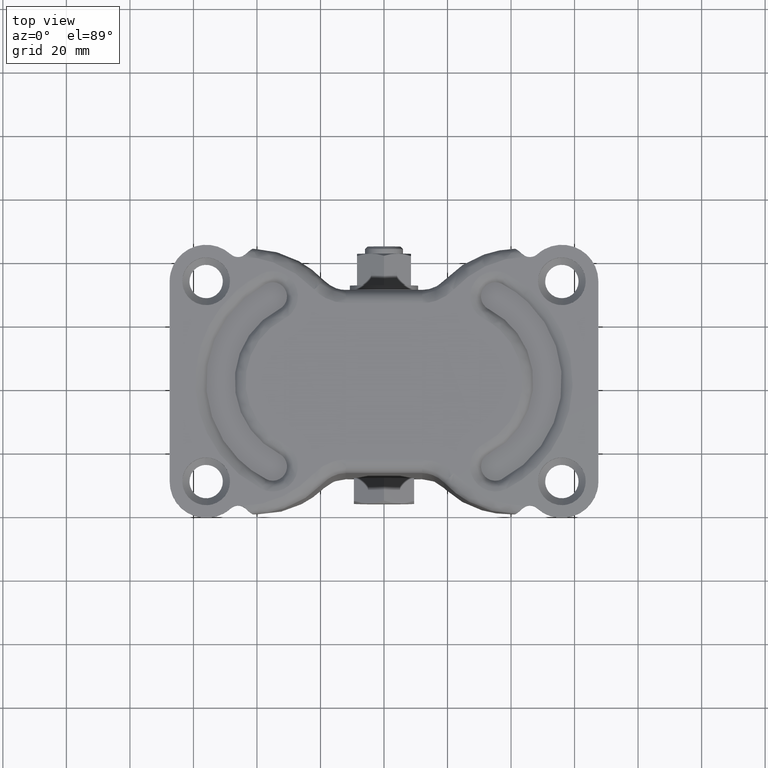
[diagram: clean part render]
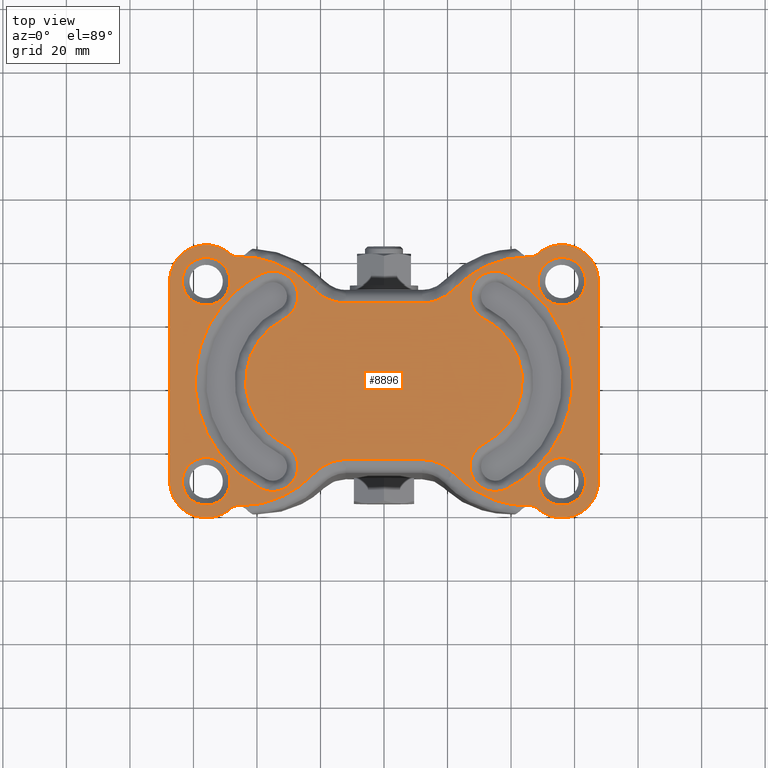
[diagram: same view with one face highlighted and labeled with its STEP entity id]
A machine part, top view. The second image highlights one B-rep face of the part: STEP entity #8896.
In plain terms, the highlighted face is a freeform B-spline surface patch.
Its self-contained STEP definition (entity closure, byte-faithful):
#4541=CARTESIAN_POINT('',(-56.457864046889497,38.986010988140883,-5.204170E-017));
#4542=VERTEX_POINT('',#4541);
#4543=CARTESIAN_POINT('',(-48.500000000000000,31.500000000000000,0.0));
#4544=VERTEX_POINT('',#4543);
#4545=CARTESIAN_POINT('',(-56.457864046889497,38.986010988140876,0.0));
#4546=CARTESIAN_POINT('',(-56.229145724928983,39.0,0.0));
#4547=CARTESIAN_POINT('',(-56.0,39.0,0.0));
#4548=CARTESIAN_POINT('',(-48.500000000000014,39.0,0.0));
#4549=CARTESIAN_POINT('',(-48.500000000000000,31.500000000000000,0.0));
#4557=(BOUNDED_CURVE()B_SPLINE_CURVE(2,(#4545,#4546,#4547,#4548,#4549),.UNSPECIFIED.,.F.,.U.)B_SPLINE_CURVE_WITH_KNOTS((3,2,3),(0.239332962233254,0.250000000000000,0.500000000000000),.UNSPECIFIED.)CURVE()GEOMETRIC_REPRESENTATION_ITEM()RATIONAL_B_SPLINE_CURVE((0.976072041654526,0.987502787893173,1.0,0.707106781186547,1.0))REPRESENTATION_ITEM(''));
#4558=EDGE_CURVE('',#4542,#4544,#4557,.T.);
#4567=CARTESIAN_POINT('',(-55.542135953110503,24.013989011859120,-5.204170E-017));
#4568=VERTEX_POINT('',#4567);
#4574=CARTESIAN_POINT('',(-48.500000000000000,31.500000000000000,0.0));
#4575=CARTESIAN_POINT('',(-48.500000000000000,24.444704498564274,0.0));
#4576=CARTESIAN_POINT('',(-55.542135953110495,24.013989011859117,0.0));
#4584=(BOUNDED_CURVE()B_SPLINE_CURVE(2,(#4574,#4575,#4576),.UNSPECIFIED.,.F.,.U.)B_SPLINE_CURVE_WITH_KNOTS((3,3),(0.500000000000000,0.739332962233254),.UNSPECIFIED.)CURVE()GEOMETRIC_REPRESENTATION_ITEM()RATIONAL_B_SPLINE_CURVE((1.0,0.719603993293375,0.976072041654525))REPRESENTATION_ITEM(''));
#4585=EDGE_CURVE('',#4544,#4568,#4584,.T.);
#4608=CARTESIAN_POINT('',(-63.500000000000000,31.500000000000000,0.0));
#4609=VERTEX_POINT('',#4608);
#4610=CARTESIAN_POINT('',(-63.500000000000000,31.500000000000000,0.0));
#4611=CARTESIAN_POINT('',(-63.499999999999993,38.555295501435737,0.0));
#4612=CARTESIAN_POINT('',(-56.457864046889497,38.986010988140876,0.0));
#4620=(BOUNDED_CURVE()B_SPLINE_CURVE(2,(#4610,#4611,#4612),.UNSPECIFIED.,.F.,.U.)B_SPLINE_CURVE_WITH_KNOTS((3,3),(0.0,0.239332962233254),.UNSPECIFIED.)CURVE()GEOMETRIC_REPRESENTATION_ITEM()RATIONAL_B_SPLINE_CURVE((1.0,0.719603993293375,0.976072041654526))REPRESENTATION_ITEM(''));
#4621=EDGE_CURVE('',#4609,#4542,#4620,.T.);
#4623=CARTESIAN_POINT('',(-55.542135953110495,24.013989011859117,0.0));
#4624=CARTESIAN_POINT('',(-55.770854275071009,24.0,0.0));
#4625=CARTESIAN_POINT('',(-56.0,24.0,0.0));
#4626=CARTESIAN_POINT('',(-63.499999999999993,24.0,0.0));
#4627=CARTESIAN_POINT('',(-63.500000000000000,31.500000000000000,0.0));
#4635=(BOUNDED_CURVE()B_SPLINE_CURVE(2,(#4623,#4624,#4625,#4626,#4627),.UNSPECIFIED.,.F.,.U.)B_SPLINE_CURVE_WITH_KNOTS((3,2,3),(0.739332962233254,0.750000000000000,1.0),.UNSPECIFIED.)CURVE()GEOMETRIC_REPRESENTATION_ITEM()RATIONAL_B_SPLINE_CURVE((0.976072041654525,0.987502787893172,1.0,0.707106781186547,1.0))REPRESENTATION_ITEM(''));
#4636=EDGE_CURVE('',#4568,#4609,#4635,.T.);
#4663=CARTESIAN_POINT('',(-56.457864046889497,-24.013989011859120,-5.204170E-017));
#4664=VERTEX_POINT('',#4663);
#4665=CARTESIAN_POINT('',(-48.500000000000000,-31.500000000000000,0.0));
#4666=VERTEX_POINT('',#4665);
#4667=CARTESIAN_POINT('',(-56.457864046889497,-24.013989011859124,0.0));
#4668=CARTESIAN_POINT('',(-56.229145724928983,-23.999999999999996,0.0));
#4669=CARTESIAN_POINT('',(-56.0,-24.0,0.0));
#4670=CARTESIAN_POINT('',(-48.500000000000014,-24.0,0.0));
#4671=CARTESIAN_POINT('',(-48.500000000000000,-31.500000000000000,0.0));
#4679=(BOUNDED_CURVE()B_SPLINE_CURVE(2,(#4667,#4668,#4669,#4670,#4671),.UNSPECIFIED.,.F.,.U.)B_SPLINE_CURVE_WITH_KNOTS((3,2,3),(0.239332962233254,0.250000000000000,0.500000000000000),.UNSPECIFIED.)CURVE()GEOMETRIC_REPRESENTATION_ITEM()RATIONAL_B_SPLINE_CURVE((0.976072041654526,0.987502787893173,1.0,0.707106781186547,1.0))REPRESENTATION_ITEM(''));
#4680=EDGE_CURVE('',#4664,#4666,#4679,.T.);
#4689=CARTESIAN_POINT('',(-55.542135953110510,-38.986010988140883,-5.204170E-017));
#4690=VERTEX_POINT('',#4689);
#4696=CARTESIAN_POINT('',(-48.500000000000000,-31.500000000000000,0.0));
#4697=CARTESIAN_POINT('',(-48.500000000000007,-38.555295501435737,0.0));
#4698=CARTESIAN_POINT('',(-55.542135953110510,-38.986010988140876,0.0));
#4706=(BOUNDED_CURVE()B_SPLINE_CURVE(2,(#4696,#4697,#4698),.UNSPECIFIED.,.F.,.U.)B_SPLINE_CURVE_WITH_KNOTS((3,3),(0.500000000000000,0.739332962233254),.UNSPECIFIED.)CURVE()GEOMETRIC_REPRESENTATION_ITEM()RATIONAL_B_SPLINE_CURVE((1.0,0.719603993293375,0.976072041654526))REPRESENTATION_ITEM(''));
#4707=EDGE_CURVE('',#4666,#4690,#4706,.T.);
#4730=CARTESIAN_POINT('',(-63.500000000000000,-31.500000000000000,0.0));
#4731=VERTEX_POINT('',#4730);
#4732=CARTESIAN_POINT('',(-63.500000000000000,-31.500000000000000,0.0));
#4733=CARTESIAN_POINT('',(-63.499999999999993,-24.444704498564267,0.0));
#4734=CARTESIAN_POINT('',(-56.457864046889497,-24.013989011859124,0.0));
#4742=(BOUNDED_CURVE()B_SPLINE_CURVE(2,(#4732,#4733,#4734),.UNSPECIFIED.,.F.,.U.)B_SPLINE_CURVE_WITH_KNOTS((3,3),(0.0,0.239332962233254),.UNSPECIFIED.)CURVE()GEOMETRIC_REPRESENTATION_ITEM()RATIONAL_B_SPLINE_CURVE((1.0,0.719603993293375,0.976072041654526))REPRESENTATION_ITEM(''));
#4743=EDGE_CURVE('',#4731,#4664,#4742,.T.);
#4745=CARTESIAN_POINT('',(-55.542135953110510,-38.986010988140876,0.0));
#4746=CARTESIAN_POINT('',(-55.770854275071024,-39.0,0.0));
#4747=CARTESIAN_POINT('',(-56.0,-39.0,0.0));
#4748=CARTESIAN_POINT('',(-63.499999999999993,-39.0,0.0));
#4749=CARTESIAN_POINT('',(-63.500000000000000,-31.500000000000000,0.0));
#4757=(BOUNDED_CURVE()B_SPLINE_CURVE(2,(#4745,#4746,#4747,#4748,#4749),.UNSPECIFIED.,.F.,.U.)B_SPLINE_CURVE_WITH_KNOTS((3,2,3),(0.739332962233254,0.750000000000000,1.0),.UNSPECIFIED.)CURVE()GEOMETRIC_REPRESENTATION_ITEM()RATIONAL_B_SPLINE_CURVE((0.976072041654526,0.987502787893173,1.0,0.707106781186547,1.0))REPRESENTATION_ITEM(''));
#4758=EDGE_CURVE('',#4690,#4731,#4757,.T.);
#4785=CARTESIAN_POINT('',(55.542135953110503,-24.013989011859120,-5.204170E-017));
#4786=VERTEX_POINT('',#4785);
#4787=CARTESIAN_POINT('',(63.500000000000000,-31.500000000000000,0.0));
#4788=VERTEX_POINT('',#4787);
#4789=CARTESIAN_POINT('',(55.542135953110510,-24.013989011859127,0.0));
#4790=CARTESIAN_POINT('',(55.770854275071024,-24.0,0.0));
#4791=CARTESIAN_POINT('',(56.0,-24.0,0.0));
#4792=CARTESIAN_POINT('',(63.499999999999993,-24.0,0.0));
#4793=CARTESIAN_POINT('',(63.500000000000000,-31.500000000000000,0.0));
#4801=(BOUNDED_CURVE()B_SPLINE_CURVE(2,(#4789,#4790,#4791,#4792,#4793),.UNSPECIFIED.,.F.,.U.)B_SPLINE_CURVE_WITH_KNOTS((3,2,3),(0.239332962233254,0.250000000000000,0.500000000000000),.UNSPECIFIED.)CURVE()GEOMETRIC_REPRESENTATION_ITEM()RATIONAL_B_SPLINE_CURVE((0.976072041654525,0.987502787893172,1.0,0.707106781186547,1.0))REPRESENTATION_ITEM(''));
#4802=EDGE_CURVE('',#4786,#4788,#4801,.T.);
#4811=CARTESIAN_POINT('',(56.457864046889497,-38.986010988140883,-5.204170E-017));
#4812=VERTEX_POINT('',#4811);
#4818=CARTESIAN_POINT('',(63.500000000000000,-31.500000000000000,0.0));
#4819=CARTESIAN_POINT('',(63.500000000000000,-38.555295501435729,0.0));
#4820=CARTESIAN_POINT('',(56.457864046889497,-38.986010988140883,0.0));
#4828=(BOUNDED_CURVE()B_SPLINE_CURVE(2,(#4818,#4819,#4820),.UNSPECIFIED.,.F.,.U.)B_SPLINE_CURVE_WITH_KNOTS((3,3),(0.500000000000000,0.739332962233254),.UNSPECIFIED.)CURVE()GEOMETRIC_REPRESENTATION_ITEM()RATIONAL_B_SPLINE_CURVE((1.0,0.719603993293375,0.976072041654525))REPRESENTATION_ITEM(''));
#4829=EDGE_CURVE('',#4788,#4812,#4828,.T.);
#4852=CARTESIAN_POINT('',(48.500000000000000,-31.500000000000000,0.0));
#4853=VERTEX_POINT('',#4852);
#4854=CARTESIAN_POINT('',(48.500000000000000,-31.500000000000000,0.0));
#4855=CARTESIAN_POINT('',(48.500000000000000,-24.444704498564274,0.0));
#4856=CARTESIAN_POINT('',(55.542135953110503,-24.013989011859117,0.0));
#4864=(BOUNDED_CURVE()B_SPLINE_CURVE(2,(#4854,#4855,#4856),.UNSPECIFIED.,.F.,.U.)B_SPLINE_CURVE_WITH_KNOTS((3,3),(0.0,0.239332962233254),.UNSPECIFIED.)CURVE()GEOMETRIC_REPRESENTATION_ITEM()RATIONAL_B_SPLINE_CURVE((1.0,0.719603993293375,0.976072041654525))REPRESENTATION_ITEM(''));
#4865=EDGE_CURVE('',#4853,#4786,#4864,.T.);
#4867=CARTESIAN_POINT('',(56.457864046889497,-38.986010988140883,0.0));
#4868=CARTESIAN_POINT('',(56.229145724928983,-39.0,0.0));
#4869=CARTESIAN_POINT('',(56.0,-39.0,0.0));
#4870=CARTESIAN_POINT('',(48.500000000000014,-39.0,0.0));
#4871=CARTESIAN_POINT('',(48.500000000000000,-31.500000000000000,0.0));
#4879=(BOUNDED_CURVE()B_SPLINE_CURVE(2,(#4867,#4868,#4869,#4870,#4871),.UNSPECIFIED.,.F.,.U.)B_SPLINE_CURVE_WITH_KNOTS((3,2,3),(0.739332962233254,0.750000000000000,1.0),.UNSPECIFIED.)CURVE()GEOMETRIC_REPRESENTATION_ITEM()RATIONAL_B_SPLINE_CURVE((0.976072041654525,0.987502787893172,1.0,0.707106781186547,1.0))REPRESENTATION_ITEM(''));
#4880=EDGE_CURVE('',#4812,#4853,#4879,.T.);
#5837=CARTESIAN_POINT('',(38.597904086651248,33.852036572994798,0.0));
#5838=VERTEX_POINT('',#5837);
#5853=CARTESIAN_POINT('',(38.597904414851598,-33.852036407228148,0.0));
#5854=VERTEX_POINT('',#5853);
#5868=CARTESIAN_POINT('',(38.597904086651248,33.852036572994798,0.0));
#5869=CARTESIAN_POINT('',(40.542881485225287,32.869867984341262,0.0));
#5870=CARTESIAN_POINT('',(44.169771364552773,30.626477516614472,0.0));
#5871=CARTESIAN_POINT('',(48.435933609930331,26.870257585299171,0.0));
#5872=CARTESIAN_POINT('',(51.426463242491529,23.397576820336390,0.0));
#5873=CARTESIAN_POINT('',(53.869345045364703,19.916386282352772,0.0));
#5874=CARTESIAN_POINT('',(55.858252095298958,16.274316264123328,0.0));
#5875=CARTESIAN_POINT('',(57.554264602186997,12.017955997796870,0.0));
#5876=CARTESIAN_POINT('',(58.706765499169748,7.807086260428221,0.0));
#5877=CARTESIAN_POINT('',(59.168846092475214,4.675834344915304,0.0));
#5878=CARTESIAN_POINT('',(59.307082762695288,2.992821494650388,0.0));
#5879=CARTESIAN_POINT('',(59.322690187476773,2.775490806218321,0.0));
#5880=CARTESIAN_POINT('',(59.335280761921616,2.612555325373861,0.0));
#5881=CARTESIAN_POINT('',(59.345138085110023,2.449432515394334,0.0));
#5882=CARTESIAN_POINT('',(59.356395523933600,2.286400831885642,0.0));
#5883=CARTESIAN_POINT('',(59.364841473901379,2.123199738209893,0.0));
#5884=CARTESIAN_POINT('',(59.374693445461617,1.960078248950950,0.0));
#5885=CARTESIAN_POINT('',(59.381732613298396,1.796811562228222,0.0));
#5886=CARTESIAN_POINT('',(59.390178411157507,1.633612476869893,0.0));
#5887=CARTESIAN_POINT('',(59.395810297854077,1.470292583285877,0.0));
#5888=CARTESIAN_POINT('',(59.402849314216411,1.307028292997728,0.0));
#5889=CARTESIAN_POINT('',(59.407073535431323,1.143667435296069,0.0));
#5890=CARTESIAN_POINT('',(59.412705282688599,0.980350189451773,0.0));
#5891=CARTESIAN_POINT('',(59.415521562429291,0.816960790135897,0.0));
#5892=CARTESIAN_POINT('',(59.419745655710138,0.653603019141506,0.0));
#5893=CARTESIAN_POINT('',(59.421153831180973,0.490197356550740,0.0));
#5894=CARTESIAN_POINT('',(59.423966093612421,0.326811441763505,0.0));
#5895=CARTESIAN_POINT('',(59.423988599496461,0.163401974708197,0.0));
#5896=CARTESIAN_POINT('',(59.425692022740151,-0.054448487516583,0.0));
#5897=CARTESIAN_POINT('',(59.423570408123247,-0.272301742575190,0.0));
#5898=CARTESIAN_POINT('',(59.421419694557990,-0.544627326576367,0.0));
#5899=CARTESIAN_POINT('',(59.399672800055072,-1.797334470067873,0.0));
#5900=CARTESIAN_POINT('',(59.315146504673869,-3.103175286800086,0.0));
#5901=CARTESIAN_POINT('',(59.175262138469733,-4.348232201158089,0.0));
#5902=CARTESIAN_POINT('',(59.148720693060319,-4.564494351605236,0.0));
#5903=CARTESIAN_POINT('',(59.123171860718003,-4.780873424725196,0.0));
#5904=CARTESIAN_POINT('',(59.093917247663690,-4.996784645659645,0.0));
#5905=CARTESIAN_POINT('',(59.057851905534058,-5.266737819486934,0.0));
#5906=CARTESIAN_POINT('',(58.849276133388408,-6.722655313327372,0.0));
#5907=CARTESIAN_POINT('',(58.269275473694371,-9.610443077576010,0.0));
#5908=CARTESIAN_POINT('',(56.869866100835992,-13.975641996591641,0.0));
#5909=CARTESIAN_POINT('',(54.685958423666662,-18.620436504756249,0.0));
#5910=CARTESIAN_POINT('',(51.444942269776362,-23.549164678261981,0.0));
#5911=CARTESIAN_POINT('',(47.363907064927950,-27.970021397463022,0.0));
#5912=CARTESIAN_POINT('',(42.881928076314942,-31.459747452012579,0.0));
#5913=CARTESIAN_POINT('',(39.959335143217167,-33.164450315341398,0.0));
#5914=CARTESIAN_POINT('',(38.597904414851598,-33.852036407228148,0.0));
#5915=B_SPLINE_CURVE_WITH_KNOTS('',3,(#5868,#5869,#5870,#5871,#5872,#5873,#5874,#5875,#5876,#5877,#5878,#5879,#5880,#5881,#5882,#5883,#5884,#5885,#5886,#5887,#5888,#5889,#5890,#5891,#5892,#5893,#5894,#5895,#5896,#5897,#5898,#5899,#5900,#5901,#5902,#5903,#5904,#5905,#5906,#5907,#5908,#5909,#5910,#5911,#5912,#5913,#5914),.UNSPECIFIED.,.F.,.U.,(4,1,1,1,1,1,1,1,1,1,1,1,1,1,1,1,1,1,1,1,1,1,1,1,1,1,1,1,1,1,1,1,1,1,1,1,1,1,1,1,1,1,1,1,4),(-0.000010324399028,6.536686816357118,12.746559576551149,16.995414347214851,20.263775091636511,25.493159424495989,29.415196521249040,33.990878305714944,38.566620180064319,38.893458895293811,39.056877491833617,39.220296088373409,39.383713780817729,39.547131473262120,39.710548105704440,39.873964738146753,40.037380141141263,40.200795544135737,40.364209534031048,40.527623523926408,40.691035902187522,40.854448280448651,41.017858832965992,41.181269385483347,41.344677881870773,41.508086378258199,41.671492571133641,41.834898764009033,42.161648199193628,42.325067441246382,42.651907973246850,45.920318017207130,46.247146008082922,46.410560614812603,46.573975221542312,46.900780286571873,47.064199610870332,47.391038371382223,51.313093513083729,55.888792287036743,61.118168547199048,66.674391503905710,73.537953166857250,79.094154297518045,83.669802143195341),.UNSPECIFIED.);
#5916=EDGE_CURVE('',#5838,#5854,#5915,.T.);
#5946=CARTESIAN_POINT('',(31.452240329807651,-19.704379285813701,0.0));
#5947=VERTEX_POINT('',#5946);
#5961=CARTESIAN_POINT('',(38.597904414851598,-33.852036407228148,0.0));
#5962=CARTESIAN_POINT('',(38.106027336251920,-34.100568756983193,0.0));
#5963=CARTESIAN_POINT('',(37.222473535799629,-34.436384174839667,0.0));
#5964=CARTESIAN_POINT('',(35.625037600932302,-34.736261705233140,0.0));
#5965=CARTESIAN_POINT('',(34.121675923861822,-34.710602847730527,0.0));
#5966=CARTESIAN_POINT('',(32.473413753380221,-34.332133384141521,0.0));
#5967=CARTESIAN_POINT('',(31.220349111923149,-33.778774351957402,0.0));
#5968=CARTESIAN_POINT('',(30.089348697106061,-33.015141394745847,0.0));
#5969=CARTESIAN_POINT('',(29.225627778086910,-32.224806671692960,0.0));
#5970=CARTESIAN_POINT('',(28.350649420310681,-31.134740696210930,0.0));
#5971=CARTESIAN_POINT('',(27.687823836372651,-29.898779052094302,0.0));
#5972=CARTESIAN_POINT('',(27.204140404581238,-28.346260279859429,0.0));
#5973=CARTESIAN_POINT('',(27.045695263570110,-26.853305512238808,0.0));
#5974=CARTESIAN_POINT('',(27.184243652851091,-25.428362316818468,0.0));
#5975=CARTESIAN_POINT('',(27.522071322585759,-24.106217399118599,0.0));
#5976=CARTESIAN_POINT('',(28.162788144054950,-22.678888819074661,0.0));
#5977=CARTESIAN_POINT('',(29.426212986190709,-21.013443253967260,0.0));
#5978=CARTESIAN_POINT('',(30.670659879878681,-20.098527015314492,0.0));
#5979=CARTESIAN_POINT('',(31.452240329807651,-19.704379285813701,0.0));
#5980=B_SPLINE_CURVE_WITH_KNOTS('',3,(#5961,#5962,#5963,#5964,#5965,#5966,#5967,#5968,#5969,#5970,#5971,#5972,#5973,#5974,#5975,#5976,#5977,#5978,#5979),.UNSPECIFIED.,.F.,.U.,(4,1,1,1,1,1,1,1,1,1,1,1,1,1,1,1,4),(0.000000474326665,1.653292821454542,2.820356738734390,4.862711209279837,6.126996725444226,7.877571017547648,8.947282605599741,10.211630723517491,11.378696969328081,13.129289417586071,14.393591658008310,16.241476657838358,17.602948537617799,18.672709685624302,20.326053626248520,22.271148418355018,24.896992175649419),.UNSPECIFIED.);
#5981=EDGE_CURVE('',#5854,#5947,#5980,.T.);
#6010=CARTESIAN_POINT('',(31.452239941177400,19.704379482101899,0.0));
#6011=VERTEX_POINT('',#6010);
#6012=CARTESIAN_POINT('',(31.452239941177400,19.704379482101899,0.0));
#6013=CARTESIAN_POINT('',(30.757561379690451,20.054822762973480,0.0));
#6014=CARTESIAN_POINT('',(29.740835557769170,20.773735239229360,0.0));
#6015=CARTESIAN_POINT('',(28.707973488990721,21.945230160224838,0.0));
#6016=CARTESIAN_POINT('',(27.894730054944809,23.198598148139329,0.0));
#6017=CARTESIAN_POINT('',(27.325849219218341,24.626988735000172,0.0));
#6018=CARTESIAN_POINT('',(27.049833084892128,26.429184609474319,0.0));
#6019=CARTESIAN_POINT('',(27.134754090512459,27.928127373436389,0.0));
#6020=CARTESIAN_POINT('',(27.508083901514421,29.409588617956210,0.0));
#6021=CARTESIAN_POINT('',(28.037700799035289,30.599983028317109,0.0));
#6022=CARTESIAN_POINT('',(28.906256768928710,31.896181900645569,0.0));
#6023=CARTESIAN_POINT('',(30.016318490400351,33.003287886914698,0.0));
#6024=CARTESIAN_POINT('',(31.366131393851148,33.855225459739451,0.0));
#6025=CARTESIAN_POINT('',(32.933273395361617,34.490942934479570,0.0));
#6026=CARTESIAN_POINT('',(34.612878409902002,34.769298646002490,0.0));
#6027=CARTESIAN_POINT('',(36.659362726145837,34.615441223013612,0.0));
#6028=CARTESIAN_POINT('',(37.903565882183543,34.203087092145537,0.0));
#6029=CARTESIAN_POINT('',(38.597904086651248,33.852036572994798,0.0));
#6030=B_SPLINE_CURVE_WITH_KNOTS('',3,(#6012,#6013,#6014,#6015,#6016,#6017,#6018,#6019,#6020,#6021,#6022,#6023,#6024,#6025,#6026,#6027,#6028,#6029),.UNSPECIFIED.,.F.,.U.,(4,1,1,1,1,1,1,1,1,1,1,1,1,1,1,4),(0.000000546082440,2.334067043373025,3.695642537515443,4.668154580988432,6.807784895303556,8.266623883890947,10.114485646641050,11.281478220512010,12.837494093318250,14.004463670536060,15.949631474933620,17.505674455947752,18.770000667124108,21.006863380696782,22.562970970356670,24.896991351648619),.UNSPECIFIED.);
#6031=EDGE_CURVE('',#6011,#5838,#6030,.T.);
#6076=CARTESIAN_POINT('',(31.452240329807651,-19.704379285813701,0.0));
#6077=CARTESIAN_POINT('',(32.924093630625649,-18.961330931387220,0.0));
#6078=CARTESIAN_POINT('',(35.272769718225213,-17.422826229262672,0.0));
#6079=CARTESIAN_POINT('',(37.922857854462087,-14.856428091046819,0.0));
#6080=CARTESIAN_POINT('',(39.918517793986943,-12.303971530977950,0.0));
#6081=CARTESIAN_POINT('',(41.756822544093787,-9.104020614422606,0.0));
#6082=CARTESIAN_POINT('',(43.024229226227817,-5.425505371869827,0.0));
#6083=CARTESIAN_POINT('',(43.558883285466713,-1.905123550848170,0.0));
#6084=CARTESIAN_POINT('',(43.614789995521008,1.334348220247965,0.0));
#6085=CARTESIAN_POINT('',(43.180014337484977,4.679620782113505,0.0));
#6086=CARTESIAN_POINT('',(42.061602197695649,8.329743234990538,0.0));
#6087=CARTESIAN_POINT('',(40.418928654994467,11.566157176598660,0.0));
#6088=CARTESIAN_POINT('',(38.461779023902359,14.231090480930570,0.0));
#6089=CARTESIAN_POINT('',(36.521880738164491,16.243687868885399,0.0));
#6090=CARTESIAN_POINT('',(34.263879497453942,18.097673641497440,0.0));
#6091=CARTESIAN_POINT('',(32.527742160328494,19.161270202145790,0.0));
#6092=CARTESIAN_POINT('',(31.452239941177400,19.704379482101899,0.0));
#6093=B_SPLINE_CURVE_WITH_KNOTS('',3,(#6076,#6077,#6078,#6079,#6080,#6081,#6082,#6083,#6084,#6085,#6086,#6087,#6088,#6089,#6090,#6091,#6092),.UNSPECIFIED.,.F.,.U.,(4,1,1,1,1,1,1,1,1,1,1,1,1,1,4),(0.000000145958843,4.946272117829196,8.370625215510387,11.034043060886489,14.648668061369390,19.404759133765211,22.638874508000200,25.302206129405150,29.106995009898640,32.721645615215650,36.716737857284208,39.950863718753162,42.614288797393840,45.087438518749977,48.701992445570120),.UNSPECIFIED.);
#6094=EDGE_CURVE('',#5947,#6011,#6093,.T.);
#6122=CARTESIAN_POINT('',(-31.452239935293200,-19.704379554226250,0.0));
#6123=VERTEX_POINT('',#6122);
#6137=CARTESIAN_POINT('',(-31.452239941177400,19.704379482101849,0.0));
#6138=VERTEX_POINT('',#6137);
#6139=CARTESIAN_POINT('',(-31.452239941177400,19.704379482101849,0.0));
#6140=CARTESIAN_POINT('',(-32.924085110883297,18.961312189753251,0.0));
#6141=CARTESIAN_POINT('',(-35.165986960539684,17.492742089138162,0.0));
#6142=CARTESIAN_POINT('',(-38.250952721116299,14.556547353143991,0.0));
#6143=CARTESIAN_POINT('',(-40.402921391355420,11.626315963807169,0.0));
#6144=CARTESIAN_POINT('',(-42.028682965738199,8.317312731192384,0.0));
#6145=CARTESIAN_POINT('',(-43.091124314433152,5.052244087869567,0.0));
#6146=CARTESIAN_POINT('',(-43.588556273731299,1.778829814013132,0.0));
#6147=CARTESIAN_POINT('',(-43.588466082628379,-1.461170838655703,0.0));
#6148=CARTESIAN_POINT('',(-43.219764580510592,-4.297680042840828,0.0));
#6149=CARTESIAN_POINT('',(-42.476735956903539,-7.059074869391654,0.0));
#6150=CARTESIAN_POINT('',(-41.467693056231823,-9.529158840492912,0.0));
#6151=CARTESIAN_POINT('',(-39.995104727191404,-12.198601393054780,0.0));
#6152=CARTESIAN_POINT('',(-38.028142086164372,-14.782471215087510,0.0));
#6153=CARTESIAN_POINT('',(-35.114640896919951,-17.531679987568559,0.0));
#6154=CARTESIAN_POINT('',(-32.867480368020402,-18.989901072647001,0.0));
#6155=CARTESIAN_POINT('',(-31.452239935293200,-19.704379554226250,0.0));
#6156=B_SPLINE_CURVE_WITH_KNOTS('',3,(#6139,#6140,#6141,#6142,#6143,#6144,#6145,#6146,#6147,#6148,#6149,#6150,#6151,#6152,#6153,#6154,#6155),.UNSPECIFIED.,.F.,.U.,(4,1,1,1,1,1,1,1,1,1,1,1,1,1,4),(0.000000168629171,4.946272186240869,7.990167171431601,12.746228306132750,15.790108107221240,19.024236308890270,23.019377795206811,25.682613563624489,28.726547063227251,31.580158795860640,34.243580769168538,36.716738219479303,40.711828650883760,43.945956418779282,48.701992918863489),.UNSPECIFIED.);
#6157=EDGE_CURVE('',#6138,#6123,#6156,.T.);
#6200=CARTESIAN_POINT('',(-38.597904058823012,33.852036517897801,0.0));
#6201=VERTEX_POINT('',#6200);
#6202=CARTESIAN_POINT('',(-38.597904058823012,33.852036517897801,0.0));
#6203=CARTESIAN_POINT('',(-37.874644647001027,34.217833648186932,0.0));
#6204=CARTESIAN_POINT('',(-36.657950931042542,34.612556367443688,0.0));
#6205=CARTESIAN_POINT('',(-34.808470845808039,34.751543451891827,0.0));
#6206=CARTESIAN_POINT('',(-33.383943844737047,34.577804121791281,0.0));
#6207=CARTESIAN_POINT('',(-31.926877119577181,34.118406158099397,0.0));
#6208=CARTESIAN_POINT('',(-30.541562040342232,33.391330024884567,0.0));
#6209=CARTESIAN_POINT('',(-29.347650121170609,32.376985179205569,0.0));
#6210=CARTESIAN_POINT('',(-28.269176507485529,31.033370431415388,0.0));
#6211=CARTESIAN_POINT('',(-27.531753459432231,29.573383750555379,0.0));
#6212=CARTESIAN_POINT('',(-27.100359333747630,27.767404460490130,0.0));
#6213=CARTESIAN_POINT('',(-27.065434919078410,26.005281303277989,0.0));
#6214=CARTESIAN_POINT('',(-27.424893912106960,24.346586989332721,0.0));
#6215=CARTESIAN_POINT('',(-28.016518944589048,23.007206386581039,0.0));
#6216=CARTESIAN_POINT('',(-28.653349269374122,22.025458494107170,0.0));
#6217=CARTESIAN_POINT('',(-29.691088862650290,20.818821463708371,0.0));
#6218=CARTESIAN_POINT('',(-30.670607610792551,20.098497885586902,0.0));
#6219=CARTESIAN_POINT('',(-31.452239941177400,19.704379482101849,0.0));
#6220=B_SPLINE_CURVE_WITH_KNOTS('',3,(#6202,#6203,#6204,#6205,#6206,#6207,#6208,#6209,#6210,#6211,#6212,#6213,#6214,#6215,#6216,#6217,#6218,#6219),.UNSPECIFIED.,.F.,.U.,(4,1,1,1,1,1,1,1,1,1,1,1,1,1,1,4),(0.000000474266223,2.431313874810051,3.792894427672604,5.543481370684695,6.710528815258122,8.363750295071469,10.211630385413510,11.378696592603781,13.518295184099580,15.074408743452370,16.922110085759471,18.769979479655849,20.131547722225271,21.298609882883550,22.271147681056348,24.896991351423910),.UNSPECIFIED.);
#6221=EDGE_CURVE('',#6201,#6138,#6220,.T.);
#6265=CARTESIAN_POINT('',(-38.597904584616799,-33.852036252331352,0.0));
#6266=VERTEX_POINT('',#6265);
#6280=CARTESIAN_POINT('',(-31.452239935293200,-19.704379554226250,0.0));
#6281=CARTESIAN_POINT('',(-30.728607908056460,-20.069399216839400,0.0));
#6282=CARTESIAN_POINT('',(-29.608742627798740,-20.871636323613199,0.0));
#6283=CARTESIAN_POINT('',(-28.298420750116971,-22.452756802237520,0.0));
#6284=CARTESIAN_POINT('',(-27.574578722093989,-23.918076919815832,0.0));
#6285=CARTESIAN_POINT('',(-27.162631299216049,-25.490304261703269,0.0));
#6286=CARTESIAN_POINT('',(-27.034790968431750,-27.115014167239700,0.0));
#6287=CARTESIAN_POINT('',(-27.306917524498260,-28.859033200498100,0.0));
#6288=CARTESIAN_POINT('',(-27.889676491160110,-30.309979979815299,0.0));
#6289=CARTESIAN_POINT('',(-28.735143613325860,-31.697332893155661,0.0));
#6290=CARTESIAN_POINT('',(-29.835836226327451,-32.864434099072007,0.0));
#6291=CARTESIAN_POINT('',(-31.277810519123239,-33.812074618706824,0.0));
#6292=CARTESIAN_POINT('',(-32.508489604010776,-34.328732794649341,0.0));
#6293=CARTESIAN_POINT('',(-33.803133408681227,-34.642661990692467,0.0));
#6294=CARTESIAN_POINT('',(-35.361026199023392,-34.765333270841857,0.0));
#6295=CARTESIAN_POINT('',(-37.043346388638703,-34.513356013565577,0.0));
#6296=CARTESIAN_POINT('',(-38.163878386154359,-34.071264557030339,0.0));
#6297=CARTESIAN_POINT('',(-38.597904584616799,-33.852036252331352,0.0));
#6298=B_SPLINE_CURVE_WITH_KNOTS('',3,(#6280,#6281,#6282,#6283,#6284,#6285,#6286,#6287,#6288,#6289,#6290,#6291,#6292,#6293,#6294,#6295,#6296,#6297),.UNSPECIFIED.,.F.,.U.,(4,1,1,1,1,1,1,1,1,1,1,1,1,1,1,4),(0.000000474400832,2.431313926705624,4.084662878468240,6.126996653110023,7.294052894283372,8.947282499978771,10.989657346602311,12.545751839912541,13.615564844520611,15.852429390149940,17.311184139085629,18.769979879386110,19.839789211596120,21.298610336438220,23.438203397436070,24.896991881584679),.UNSPECIFIED.);
#6299=EDGE_CURVE('',#6123,#6266,#6298,.T.);
#6328=CARTESIAN_POINT('',(-38.597904584616799,-33.852036252331352,0.0));
#6329=CARTESIAN_POINT('',(-40.542880177040153,-32.869868853435797,0.0));
#6330=CARTESIAN_POINT('',(-43.797762609112503,-30.856536870463930,0.0));
#6331=CARTESIAN_POINT('',(-47.373952524001787,-27.815427516832059,0.0));
#6332=CARTESIAN_POINT('',(-50.551322744444327,-24.519034289568090,0.0));
#6333=CARTESIAN_POINT('',(-53.663284767317343,-20.431186291334932,0.0));
#6334=CARTESIAN_POINT('',(-56.352862446285243,-15.297494251660590,0.0));
#6335=CARTESIAN_POINT('',(-58.404525448167078,-9.424326850873733,0.0));
#6336=CARTESIAN_POINT('',(-59.117151463220459,-5.436762757170774,0.0));
#6337=CARTESIAN_POINT('',(-59.315048576997093,-2.884158433879662,0.0));
#6338=CARTESIAN_POINT('',(-59.322649886505822,-2.775487265312859,0.0));
#6339=CARTESIAN_POINT('',(-59.335280796026701,-2.612554829452839,0.0));
#6340=CARTESIAN_POINT('',(-59.345138117067762,-2.449432019821031,0.0));
#6341=CARTESIAN_POINT('',(-59.356395553739617,-2.286400336641093,0.0));
#6342=CARTESIAN_POINT('',(-59.364841501564783,-2.123199243331798,0.0));
#6343=CARTESIAN_POINT('',(-59.374693470977817,-1.960077754420505,0.0));
#6344=CARTESIAN_POINT('',(-59.381732636676951,-1.796811068082052,0.0));
#6345=CARTESIAN_POINT('',(-59.390178432393533,-1.633611983090274,0.0));
#6346=CARTESIAN_POINT('',(-59.395810316957657,-1.470292089909716,0.0));
#6347=CARTESIAN_POINT('',(-59.402849331182388,-1.307027800006062,0.0));
#6348=CARTESIAN_POINT('',(-59.407073550270347,-1.143666942726106,0.0));
#6349=CARTESIAN_POINT('',(-59.412705295395313,-0.980349697285049,0.0));
#6350=CARTESIAN_POINT('',(-59.415521573014729,-0.816960298409024,0.0));
#6351=CARTESIAN_POINT('',(-59.419745664168687,-0.653602527836413,0.0));
#6352=CARTESIAN_POINT('',(-59.421153837524258,-0.490196865703921,0.0));
#6353=CARTESIAN_POINT('',(-59.423966097829783,-0.326810951356738,0.0));
#6354=CARTESIAN_POINT('',(-59.423988601612869,-0.163401484777632,0.0));
#6355=CARTESIAN_POINT('',(-59.425692022029928,0.054448976839175,0.0));
#6356=CARTESIAN_POINT('',(-59.423570404619603,0.272302231241675,0.0));
#6357=CARTESIAN_POINT('',(-59.421419687548621,0.544627814426475,0.0));
#6358=CARTESIAN_POINT('',(-59.399672777004753,1.797334953988979,0.0));
#6359=CARTESIAN_POINT('',(-59.315146465261847,3.103175765834986,0.0));
#6360=CARTESIAN_POINT('',(-59.175262083801883,4.348232674805153,0.0));
#6361=CARTESIAN_POINT('',(-59.148720958265613,4.564494895769466,0.0));
#6362=CARTESIAN_POINT('',(-59.123169992834818,4.780873497125506,0.0));
#6363=CARTESIAN_POINT('',(-59.093922716339719,4.996786330708713,0.0));
#6364=CARTESIAN_POINT('',(-59.057825057385998,5.266732496959984,0.0));
#6365=CARTESIAN_POINT('',(-58.741389702574068,7.477624141007200,0.0));
#6366=CARTESIAN_POINT('',(-57.949185663947752,10.884659982885390,0.0));
#6367=CARTESIAN_POINT('',(-56.249486200116209,15.373651852512779,0.0));
#6368=CARTESIAN_POINT('',(-54.323446412348240,19.168365030823889,0.0));
#6369=CARTESIAN_POINT('',(-51.486570651230153,23.442304198133929,0.0));
#6370=CARTESIAN_POINT('',(-47.610842280058023,27.751292562359549,0.0));
#6371=CARTESIAN_POINT('',(-43.070538593520851,31.349835099223299,0.0));
#6372=CARTESIAN_POINT('',(-39.959323609236719,33.164436238151460,0.0));
#6373=CARTESIAN_POINT('',(-38.597904058823012,33.852036517897801,0.0));
#6374=B_SPLINE_CURVE_WITH_KNOTS('',3,(#6328,#6329,#6330,#6331,#6332,#6333,#6334,#6335,#6336,#6337,#6338,#6339,#6340,#6341,#6342,#6343,#6344,#6345,#6346,#6347,#6348,#6349,#6350,#6351,#6352,#6353,#6354,#6355,#6356,#6357,#6358,#6359,#6360,#6361,#6362,#6363,#6364,#6365,#6366,#6367,#6368,#6369,#6370,#6371,#6372,#6373),.UNSPECIFIED.,.F.,.U.,(4,1,1,1,1,1,1,2,1,1,1,1,1,1,1,1,1,1,1,1,1,1,1,1,1,1,1,1,1,1,1,1,1,1,1,1,1,1,1,1,1,1,4),(-0.000010346889667,6.536686776606317,11.439221109121080,14.053897441585949,20.263775015634291,26.800505670931859,31.376210095039649,38.893458770092131,39.056877366199693,39.220295962307191,39.383713654319287,39.547131346331383,39.710547978341502,39.873964610351550,40.037380012913722,40.200795415475902,40.364209404938897,40.527623394401992,40.691035772230769,40.854448150059568,41.017858702144643,41.181269254229683,41.344677750184793,41.508086246139982,41.671492438583080,41.834898631026142,42.161648065362279,42.325067306984153,42.651907838122732,45.920317873440133,46.247145863453582,46.410560469752063,46.573975076050559,46.900780140225692,47.064199464092773,47.391038223741702,53.600945004170740,57.522969434307441,61.771841424316932,66.347554608230539,72.884282394528483,79.094154066151617,83.669801899478642),.UNSPECIFIED.);
#6375=EDGE_CURVE('',#6266,#6201,#6374,.T.);
#6420=CARTESIAN_POINT('',(-45.286515062622598,39.193457646805953,0.0));
#6421=VERTEX_POINT('',#6420);
#6441=CARTESIAN_POINT('',(-21.962988814587352,28.933892902993652,0.0));
#6442=VERTEX_POINT('',#6441);
#6443=CARTESIAN_POINT('',(-21.962988814587352,28.933892902993652,0.0));
#6444=CARTESIAN_POINT('',(-22.949966223387079,29.975108180809560,0.0));
#6445=CARTESIAN_POINT('',(-24.794399084656661,31.710730054237700,0.0));
#6446=CARTESIAN_POINT('',(-27.474125108379511,33.724120555601750,0.0));
#6447=CARTESIAN_POINT('',(-29.912211796428750,35.241325778351872,0.0));
#6448=CARTESIAN_POINT('',(-32.771980363337612,36.708348079268298,0.0));
#6449=CARTESIAN_POINT('',(-36.037239667337317,37.948500272326207,0.0));
#6450=CARTESIAN_POINT('',(-39.031790526744352,38.666416271883328,0.0));
#6451=CARTESIAN_POINT('',(-42.005212885167467,39.117126603923282,0.0));
#6452=CARTESIAN_POINT('',(-43.920304836064197,39.216070212687619,0.0));
#6453=CARTESIAN_POINT('',(-45.286515062622598,39.193457646805953,0.0));
#6454=B_SPLINE_CURVE_WITH_KNOTS('',3,(#6443,#6444,#6445,#6446,#6447,#6448,#6449,#6450,#6451,#6452,#6453),.UNSPECIFIED.,.F.,.U.,(4,1,1,1,1,1,1,1,4),(-0.000008213048208,4.304309066297407,7.583730591513739,10.043282851602751,12.912815408650010,17.217079328143779,20.496485810893251,22.136195633984791,26.235500857579648),.UNSPECIFIED.);
#6455=EDGE_CURVE('',#6442,#6421,#6454,.T.);
#6550=CARTESIAN_POINT('',(-11.998855098554341,24.650000000047651,0.0));
#6551=VERTEX_POINT('',#6550);
#6552=CARTESIAN_POINT('',(-11.998855098554341,24.650000000047701,0.0));
#6553=CARTESIAN_POINT('',(-17.901811766308210,24.650000000047694,0.0));
#6554=CARTESIAN_POINT('',(-21.962988814587330,28.933892902993669,0.0));
#6562=(BOUNDED_CURVE()B_SPLINE_CURVE(2,(#6552,#6553,#6554),.UNSPECIFIED.,.F.,.U.)CURVE()GEOMETRIC_REPRESENTATION_ITEM()QUASI_UNIFORM_CURVE()RATIONAL_B_SPLINE_CURVE((1.0,0.918692092121067,1.0))REPRESENTATION_ITEM(''));
#6563=EDGE_CURVE('',#6551,#6442,#6562,.T.);
#6610=CARTESIAN_POINT('',(11.998857618558160,24.650000999952351,0.0));
#6611=VERTEX_POINT('',#6610);
#6612=CARTESIAN_POINT('',(11.998857618558160,24.650000999952351,0.0));
#6613=CARTESIAN_POINT('',(-11.998855098554341,24.650000000047651,0.0));
#6614=QUASI_UNIFORM_CURVE('',1,(#6612,#6613),.UNSPECIFIED.,.F.,.U.);
#6615=EDGE_CURVE('',#6611,#6551,#6614,.T.);
#6658=CARTESIAN_POINT('',(21.962990449121101,28.933893572325399,0.0));
#6659=VERTEX_POINT('',#6658);
#6660=CARTESIAN_POINT('',(21.962990449121090,28.933893572325410,0.0));
#6661=CARTESIAN_POINT('',(17.901813677544510,24.650001245908875,0.0));
#6662=CARTESIAN_POINT('',(11.998857618558169,24.650000999952368,0.0));
#6670=(BOUNDED_CURVE()B_SPLINE_CURVE(2,(#6660,#6661,#6662),.UNSPECIFIED.,.F.,.U.)CURVE()GEOMETRIC_REPRESENTATION_ITEM()QUASI_UNIFORM_CURVE()RATIONAL_B_SPLINE_CURVE((1.0,0.918692106901595,1.0))REPRESENTATION_ITEM(''));
#6671=EDGE_CURVE('',#6659,#6611,#6670,.T.);
#6743=CARTESIAN_POINT('',(45.286516270343100,39.193457607012100,0.0));
#6744=VERTEX_POINT('',#6743);
#6745=CARTESIAN_POINT('',(45.286516270343100,39.193457607012100,0.0));
#6746=CARTESIAN_POINT('',(44.193545899415433,39.211406772149289,0.0));
#6747=CARTESIAN_POINT('',(41.731883739266920,39.118415915737479,0.0));
#6748=CARTESIAN_POINT('',(38.218422817373330,38.534791949063369,0.0));
#6749=CARTESIAN_POINT('',(35.006748762078182,37.572093478517928,0.0));
#6750=CARTESIAN_POINT('',(32.665078552312522,36.613869381122683,0.0));
#6751=CARTESIAN_POINT('',(30.393423970005699,35.503071084368692,0.0));
#6752=CARTESIAN_POINT('',(28.270285375654939,34.255166384661173,0.0));
#6753=CARTESIAN_POINT('',(25.208434524546849,32.072043355540792,0.0));
#6754=CARTESIAN_POINT('',(23.231731837313092,30.272675193258991,0.0));
#6755=CARTESIAN_POINT('',(21.962990449121101,28.933893572325399,0.0));
#6756=B_SPLINE_CURVE_WITH_KNOTS('',3,(#6745,#6746,#6747,#6748,#6749,#6750,#6751,#6752,#6753,#6754,#6755),.UNSPECIFIED.,.F.,.U.,(4,1,1,1,1,1,1,1,4),(0.000027229536080,3.279480841529736,7.378727699551678,10.658160501194970,13.322694621883270,14.962446608050699,18.241855181833088,20.701402895680950,26.235493437529581),.UNSPECIFIED.);
#6757=EDGE_CURVE('',#6744,#6659,#6756,.T.);
#6870=CARTESIAN_POINT('',(45.286516311112202,-39.193457599201800,0.0));
#6871=VERTEX_POINT('',#6870);
#6891=CARTESIAN_POINT('',(21.962990449121101,-28.933893572325399,0.0));
#6892=VERTEX_POINT('',#6891);
#6893=CARTESIAN_POINT('',(21.962990449121101,-28.933893572325399,0.0));
#6894=CARTESIAN_POINT('',(22.949955631562339,-29.975120528274239,0.0));
#6895=CARTESIAN_POINT('',(24.894104455903509,-31.804526860967719,0.0));
#6896=CARTESIAN_POINT('',(27.806484808774499,-33.965594983999146,0.0));
#6897=CARTESIAN_POINT('',(30.273625604299429,-35.436584010027907,0.0));
#6898=CARTESIAN_POINT('',(32.293701818104921,-36.440426898921856,0.0));
#6899=CARTESIAN_POINT('',(34.496033810887489,-37.374506967154588,0.0));
#6900=CARTESIAN_POINT('',(37.420040044677023,-38.339124241353836,0.0));
#6901=CARTESIAN_POINT('',(41.184360665713939,-39.075054617618221,0.0));
#6902=CARTESIAN_POINT('',(43.920328240946098,-39.216003737903669,0.0));
#6903=CARTESIAN_POINT('',(45.286516311112202,-39.193457599201800,0.0));
#6904=B_SPLINE_CURVE_WITH_KNOTS('',3,(#6893,#6894,#6895,#6896,#6897,#6898,#6899,#6900,#6901,#6902,#6903),.UNSPECIFIED.,.F.,.U.,(4,1,1,1,1,1,1,1,4),(-0.000008213052535,4.304308949747966,7.993642314662708,10.863132842405520,12.912815059005620,14.757531079082080,18.036939700318779,22.136195034606128,26.235500147203240),.UNSPECIFIED.);
#6905=EDGE_CURVE('',#6892,#6871,#6904,.T.);
#7000=CARTESIAN_POINT('',(11.998857618558160,-24.650000999952351,0.0));
#7001=VERTEX_POINT('',#7000);
#7002=CARTESIAN_POINT('',(11.998857618558160,-24.650000999952368,0.0));
#7003=CARTESIAN_POINT('',(17.901813677544510,-24.650001245908875,0.0));
#7004=CARTESIAN_POINT('',(21.962990449121090,-28.933893572325410,0.0));
#7012=(BOUNDED_CURVE()B_SPLINE_CURVE(2,(#7002,#7003,#7004),.UNSPECIFIED.,.F.,.U.)CURVE()GEOMETRIC_REPRESENTATION_ITEM()QUASI_UNIFORM_CURVE()RATIONAL_B_SPLINE_CURVE((1.0,0.918692106901595,1.0))REPRESENTATION_ITEM(''));
#7013=EDGE_CURVE('',#7001,#6892,#7012,.T.);
#7061=CARTESIAN_POINT('',(-11.998855098554341,-24.650000000047651,0.0));
#7062=VERTEX_POINT('',#7061);
#7063=CARTESIAN_POINT('',(-11.998855098554341,-24.650000000047651,0.0));
#7064=CARTESIAN_POINT('',(11.998857618558160,-24.650000999952351,0.0));
#7065=QUASI_UNIFORM_CURVE('',1,(#7063,#7064),.UNSPECIFIED.,.F.,.U.);
#7066=EDGE_CURVE('',#7062,#7001,#7065,.T.);
#7109=CARTESIAN_POINT('',(-21.962988814587298,-28.933892902993598,0.0));
#7110=VERTEX_POINT('',#7109);
#7111=CARTESIAN_POINT('',(-21.962988814587280,-28.933892902993609,0.0));
#7112=CARTESIAN_POINT('',(-17.901811766308175,-24.650000000047697,0.0));
#7113=CARTESIAN_POINT('',(-11.998855098554341,-24.650000000047701,0.0));
#7121=(BOUNDED_CURVE()B_SPLINE_CURVE(2,(#7111,#7112,#7113),.UNSPECIFIED.,.F.,.U.)CURVE()GEOMETRIC_REPRESENTATION_ITEM()QUASI_UNIFORM_CURVE()RATIONAL_B_SPLINE_CURVE((1.0,0.918692092121069,1.0))REPRESENTATION_ITEM(''));
#7122=EDGE_CURVE('',#7110,#7062,#7121,.T.);
#7194=CARTESIAN_POINT('',(-45.286515021836401,-39.193457654619600,0.0));
#7195=VERTEX_POINT('',#7194);
#7196=CARTESIAN_POINT('',(-45.286515021836401,-39.193457654619600,0.0));
#7197=CARTESIAN_POINT('',(-43.920303408872513,-39.216067936137122,0.0));
#7198=CARTESIAN_POINT('',(-42.005215640106691,-39.117098121195170,0.0));
#7199=CARTESIAN_POINT('',(-39.031812593784657,-38.666305924852502,0.0));
#7200=CARTESIAN_POINT('',(-36.037226936269029,-37.948402526478972,0.0));
#7201=CARTESIAN_POINT('',(-32.900040994005693,-36.756890604834346,0.0));
#7202=CARTESIAN_POINT('',(-30.031634346783441,-35.308616651305272,0.0));
#7203=CARTESIAN_POINT('',(-27.350137632963911,-33.663376171689322,0.0));
#7204=CARTESIAN_POINT('',(-24.586021745683819,-31.531320081017679,0.0));
#7205=CARTESIAN_POINT('',(-22.762044662829020,-29.776769154124061,0.0));
#7206=CARTESIAN_POINT('',(-21.962988814587298,-28.933892902993598,0.0));
#7207=B_SPLINE_CURVE_WITH_KNOTS('',3,(#7196,#7197,#7198,#7199,#7200,#7201,#7202,#7203,#7204,#7205,#7206),.UNSPECIFIED.,.F.,.U.,(4,1,1,1,1,1,1,1,4),(0.000027229528989,4.099326939588060,5.739034607584323,9.018436527298540,13.322694982601771,15.782300641777161,18.651786769622088,22.751063313334580,26.235494147878828),.UNSPECIFIED.);
#7208=EDGE_CURVE('',#7195,#7110,#7207,.T.);
#8001=CARTESIAN_POINT('',(-67.500000000000000,-31.500000000000000,0.0));
#8002=VERTEX_POINT('',#8001);
#8003=CARTESIAN_POINT('',(-48.291204069349803,-40.033726102470453,0.0));
#8004=VERTEX_POINT('',#8003);
#8005=CARTESIAN_POINT('',(-67.500000000000000,-31.500000000000000,0.0));
#8006=CARTESIAN_POINT('',(-67.500080552993012,-32.224948826227433,0.0));
#8007=CARTESIAN_POINT('',(-67.368990822914569,-33.605782283285521,0.0));
#8008=CARTESIAN_POINT('',(-66.861527231173270,-35.406649297834200,0.0));
#8009=CARTESIAN_POINT('',(-66.080085528768265,-37.141249267670432,0.0));
#8010=CARTESIAN_POINT('',(-64.834433083963432,-39.020957617033787,0.0));
#8011=CARTESIAN_POINT('',(-62.984791360773833,-40.764189506608652,0.0));
#8012=CARTESIAN_POINT('',(-61.124648922721448,-41.844080256347688,0.0));
#8013=CARTESIAN_POINT('',(-59.421782140520911,-42.519397493701447,0.0));
#8014=CARTESIAN_POINT('',(-57.535461438288948,-42.977066469411717,0.0));
#8015=CARTESIAN_POINT('',(-55.278707800602000,-43.056845085658772,0.0));
#8016=CARTESIAN_POINT('',(-53.091303467939433,-42.687307583840102,0.0));
#8017=CARTESIAN_POINT('',(-50.709146218619388,-41.837008590677989,0.0));
#8018=CARTESIAN_POINT('',(-49.161840063313782,-40.821016683747139,0.0));
#8019=CARTESIAN_POINT('',(-48.291204069349803,-40.033726102470453,0.0));
#8020=B_SPLINE_CURVE_WITH_KNOTS('',3,(#8005,#8006,#8007,#8008,#8009,#8010,#8011,#8012,#8013,#8014,#8015,#8016,#8017,#8018,#8019),.UNSPECIFIED.,.F.,.U.,(4,1,1,1,1,1,1,1,1,1,1,1,4),(0.000000558665462,2.174837183901271,4.142607459600622,5.592534054556616,7.870992783366134,10.874406878606290,13.152895997762840,14.292002264077709,16.363339995294179,18.952468645607841,21.023804732207591,22.991577044151931,26.512762129145059),.UNSPECIFIED.);
#8021=EDGE_CURVE('',#8002,#8004,#8020,.T.);
#8080=CARTESIAN_POINT('',(-45.286515021836387,-39.193457654619557,0.0));
#8081=CARTESIAN_POINT('',(-46.998044850322081,-38.865572842929005,0.0));
#8082=CARTESIAN_POINT('',(-48.291204069349803,-40.033726102470439,0.0));
#8090=(BOUNDED_CURVE()B_SPLINE_CURVE(2,(#8080,#8081,#8082),.UNSPECIFIED.,.F.,.U.)CURVE()GEOMETRIC_REPRESENTATION_ITEM()QUASI_UNIFORM_CURVE()RATIONAL_B_SPLINE_CURVE((1.0,0.895177472579751,1.0))REPRESENTATION_ITEM(''));
#8091=EDGE_CURVE('',#7195,#8004,#8090,.T.);
#8229=CARTESIAN_POINT('',(48.291204772136602,-40.033725806168647,0.0));
#8230=VERTEX_POINT('',#8229);
#8231=CARTESIAN_POINT('',(48.291204772136602,-40.033725806168647,0.0));
#8232=CARTESIAN_POINT('',(46.998045729824376,-38.865573015330000,0.0));
#8233=CARTESIAN_POINT('',(45.286516311112209,-39.193457599201821,0.0));
#8241=(BOUNDED_CURVE()B_SPLINE_CURVE(2,(#8231,#8232,#8233),.UNSPECIFIED.,.F.,.U.)CURVE()GEOMETRIC_REPRESENTATION_ITEM()QUASI_UNIFORM_CURVE()RATIONAL_B_SPLINE_CURVE((1.0,0.895177518023511,1.0))REPRESENTATION_ITEM(''));
#8242=EDGE_CURVE('',#8230,#6871,#8241,.T.);
#8308=CARTESIAN_POINT('',(67.500000000000000,-31.500000000000000,0.0));
#8309=VERTEX_POINT('',#8308);
#8310=CARTESIAN_POINT('',(48.291204772136602,-40.033725806168647,0.0));
#8311=CARTESIAN_POINT('',(49.008317939960399,-40.681884173551090,0.0));
#8312=CARTESIAN_POINT('',(50.550234483941693,-41.755734830250177,0.0));
#8313=CARTESIAN_POINT('',(52.920036812773340,-42.662597083211480,0.0));
#8314=CARTESIAN_POINT('',(54.868961874153413,-42.982431497845191,0.0));
#8315=CARTESIAN_POINT('',(56.562554906239761,-43.021769688843982,0.0));
#8316=CARTESIAN_POINT('',(58.180234974921163,-42.840047065702016,0.0));
#8317=CARTESIAN_POINT('',(60.049138647263810,-42.323853519565532,0.0));
#8318=CARTESIAN_POINT('',(62.056555644179319,-41.377561357836193,0.0));
#8319=CARTESIAN_POINT('',(63.879743757559190,-39.985161691049854,0.0));
#8320=CARTESIAN_POINT('',(65.221330528100694,-38.442695937881084,0.0));
#8321=CARTESIAN_POINT('',(66.243760363072582,-36.838290048025470,0.0));
#8322=CARTESIAN_POINT('',(67.201372087080571,-34.606654851177858,0.0));
#8323=CARTESIAN_POINT('',(67.500582116974314,-32.673794226041203,0.0));
#8324=CARTESIAN_POINT('',(67.500000000000000,-31.500000000000000,0.0));
#8325=B_SPLINE_CURVE_WITH_KNOTS('',3,(#8310,#8311,#8312,#8313,#8314,#8315,#8316,#8317,#8318,#8319,#8320,#8321,#8322,#8323,#8324),.UNSPECIFIED.,.F.,.U.,(4,1,1,1,1,1,1,1,1,1,1,1,4),(0.000000294972498,2.899798453020210,5.592533778700897,7.560283008618569,8.803069400979609,10.667298213709740,12.427858716693880,14.602710661693321,17.295408481616271,19.263175584945571,20.713098735237121,22.991576730466178,26.512761804692818),.UNSPECIFIED.);
#8326=EDGE_CURVE('',#8230,#8309,#8325,.T.);
#8362=CARTESIAN_POINT('',(67.500000000000000,31.500000000000000,0.0));
#8363=VERTEX_POINT('',#8362);
#8364=CARTESIAN_POINT('',(67.500000000000000,31.500000000000000,0.0));
#8365=CARTESIAN_POINT('',(67.500000000000000,-31.500000000000000,0.0));
#8366=QUASI_UNIFORM_CURVE('',1,(#8364,#8365),.UNSPECIFIED.,.F.,.U.);
#8367=EDGE_CURVE('',#8363,#8309,#8366,.T.);
#8403=CARTESIAN_POINT('',(48.291205069349687,40.033726102470403,0.0));
#8404=VERTEX_POINT('',#8403);
#8405=CARTESIAN_POINT('',(67.500000000000000,31.500000000000000,0.0));
#8406=CARTESIAN_POINT('',(67.500044491382866,32.224939099975607,0.0));
#8407=CARTESIAN_POINT('',(67.346206221990442,33.847477467595183,0.0));
#8408=CARTESIAN_POINT('',(66.644265608826984,36.067986816002580,0.0));
#8409=CARTESIAN_POINT('',(65.503679698309867,38.091018788939003,0.0));
#8410=CARTESIAN_POINT('',(64.255733995200529,39.578821542202952,0.0));
#8411=CARTESIAN_POINT('',(62.839653891082300,40.797779545294581,0.0));
#8412=CARTESIAN_POINT('',(61.315834697360373,41.757764625354902,0.0));
#8413=CARTESIAN_POINT('',(59.557345468268828,42.492014598936450,0.0));
#8414=CARTESIAN_POINT('',(57.364827583408122,43.003198054985937,0.0));
#8415=CARTESIAN_POINT('',(55.173178122346748,43.051026200504090,0.0));
#8416=CARTESIAN_POINT('',(53.061520337453111,42.664773815657462,0.0));
#8417=CARTESIAN_POINT('',(51.556814573753122,42.142810225741101,0.0));
#8418=CARTESIAN_POINT('',(49.918620288173678,41.321994124744023,0.0));
#8419=CARTESIAN_POINT('',(48.905905854159847,40.589230221885160,0.0));
#8420=CARTESIAN_POINT('',(48.291205069349687,40.033726102470403,0.0));
#8421=B_SPLINE_CURVE_WITH_KNOTS('',3,(#8405,#8406,#8407,#8408,#8409,#8410,#8411,#8412,#8413,#8414,#8415,#8416,#8417,#8418,#8419,#8420),.UNSPECIFIED.,.F.,.U.,(4,1,1,1,1,1,1,1,1,1,1,1,1,4),(0.000000302822855,2.174836888304256,4.867569941970007,6.938894133170194,9.113790409500961,10.667298049732890,12.531498280765939,14.499098371596871,16.363339440293402,19.263175282509192,21.023804092003111,22.784449488445599,24.027252347026959,26.512761385564151),.UNSPECIFIED.);
#8422=EDGE_CURVE('',#8363,#8404,#8421,.T.);
#8476=CARTESIAN_POINT('',(45.286516270343100,39.193457607012121,0.0));
#8477=CARTESIAN_POINT('',(46.998045967476088,38.865572948758135,0.0));
#8478=CARTESIAN_POINT('',(48.291205069349722,40.033726102470368,0.0));
#8486=(BOUNDED_CURVE()B_SPLINE_CURVE(2,(#8476,#8477,#8478),.UNSPECIFIED.,.F.,.U.)CURVE()GEOMETRIC_REPRESENTATION_ITEM()QUASI_UNIFORM_CURVE()RATIONAL_B_SPLINE_CURVE((1.0,0.895177488690628,1.0))REPRESENTATION_ITEM(''));
#8487=EDGE_CURVE('',#6744,#8404,#8486,.T.);
#8625=CARTESIAN_POINT('',(-48.291204772136503,40.033725806168597,0.0));
#8626=VERTEX_POINT('',#8625);
#8627=CARTESIAN_POINT('',(-48.291204772136503,40.033725806168597,0.0));
#8628=CARTESIAN_POINT('',(-46.998045067421103,38.865572822391258,0.0));
#8629=CARTESIAN_POINT('',(-45.286515062622613,39.193457646805982,0.0));
#8637=(BOUNDED_CURVE()B_SPLINE_CURVE(2,(#8627,#8628,#8629),.UNSPECIFIED.,.F.,.U.)CURVE()GEOMETRIC_REPRESENTATION_ITEM()QUASI_UNIFORM_CURVE()RATIONAL_B_SPLINE_CURVE((1.0,0.895177454664500,1.0))REPRESENTATION_ITEM(''));
#8638=EDGE_CURVE('',#8626,#6421,#8637,.T.);
#8704=CARTESIAN_POINT('',(-67.500000000000000,31.500000000000000,0.0));
#8705=VERTEX_POINT('',#8704);
#8706=CARTESIAN_POINT('',(-48.291204772136503,40.033725806168597,0.0));
#8707=CARTESIAN_POINT('',(-48.931531283361927,40.612354055603717,0.0));
#8708=CARTESIAN_POINT('',(-50.258593004406492,41.563651890349483,0.0));
#8709=CARTESIAN_POINT('',(-52.167195195629319,42.394203176765487,0.0));
#8710=CARTESIAN_POINT('',(-53.975242108437953,42.861303524423619,0.0));
#8711=CARTESIAN_POINT('',(-55.869633267158321,43.068238445074122,0.0));
#8712=CARTESIAN_POINT('',(-58.187564023900812,42.881688749594304,0.0));
#8713=CARTESIAN_POINT('',(-60.446835751276353,42.191410570173048,0.0));
#8714=CARTESIAN_POINT('',(-62.211888503864778,41.229014153077408,0.0));
#8715=CARTESIAN_POINT('',(-63.590722134228848,40.185776696524371,0.0));
#8716=CARTESIAN_POINT('',(-64.670741119679533,39.111350357448813,0.0));
#8717=CARTESIAN_POINT('',(-65.715264740274804,37.732840660495242,0.0));
#8718=CARTESIAN_POINT('',(-66.495707234457313,36.303575445275172,0.0));
#8719=CARTESIAN_POINT('',(-67.269339731842990,34.192453596276891,0.0));
#8720=CARTESIAN_POINT('',(-67.500505142921114,32.604757885504810,0.0));
#8721=CARTESIAN_POINT('',(-67.500000000000000,31.500000000000000,0.0));
#8722=B_SPLINE_CURVE_WITH_KNOTS('',3,(#8706,#8707,#8708,#8709,#8710,#8711,#8712,#8713,#8714,#8715,#8716,#8717,#8718,#8719,#8720,#8721),.UNSPECIFIED.,.F.,.U.,(4,1,1,1,1,1,1,1,1,1,1,1,1,4),(0.000000294939873,2.589075074714646,4.867570012497968,6.213924652195974,8.181698646348316,10.563693768207241,13.152895705458860,15.224055859950230,16.570450444717672,18.331083115227891,19.781005273944050,21.748770607555851,23.198692427452020,26.512761804692939),.UNSPECIFIED.);
#8723=EDGE_CURVE('',#8626,#8705,#8722,.T.);
#8758=CARTESIAN_POINT('',(-67.500000000000000,-31.500000000000000,0.0));
#8759=CARTESIAN_POINT('',(-67.500000000000000,31.500000000000000,0.0));
#8760=QUASI_UNIFORM_CURVE('',1,(#8758,#8759),.UNSPECIFIED.,.F.,.U.);
#8761=EDGE_CURVE('',#8002,#8705,#8760,.T.);
#8773=CARTESIAN_POINT('',(-74.243249738343820,47.288461871836617,0.0));
#8774=CARTESIAN_POINT('',(74.243253359325976,47.288461871836617,0.0));
#8775=CARTESIAN_POINT('',(-74.243249738343820,-47.288464924337262,0.0));
#8776=CARTESIAN_POINT('',(74.243253359325976,-47.288464924337262,0.0));
#8777=B_SPLINE_SURFACE_WITH_KNOTS('',1,1,((#8773,#8775),(#8774,#8776)),.UNSPECIFIED.,.F.,.F.,.U.,(2,2),(2,2),(0.0,148.486503097669810),(0.0,94.576926796173893),.UNSPECIFIED.);
#8778=ORIENTED_EDGE('',*,*,#8091,.F.);
#8779=ORIENTED_EDGE('',*,*,#7208,.T.);
#8780=ORIENTED_EDGE('',*,*,#7122,.T.);
#8781=ORIENTED_EDGE('',*,*,#7066,.T.);
#8782=ORIENTED_EDGE('',*,*,#7013,.T.);
#8783=ORIENTED_EDGE('',*,*,#6905,.T.);
#8784=ORIENTED_EDGE('',*,*,#8242,.F.);
#8785=ORIENTED_EDGE('',*,*,#8326,.T.);
#8786=ORIENTED_EDGE('',*,*,#8367,.F.);
#8787=ORIENTED_EDGE('',*,*,#8422,.T.);
#8788=ORIENTED_EDGE('',*,*,#8487,.F.);
#8789=ORIENTED_EDGE('',*,*,#6757,.T.);
#8790=ORIENTED_EDGE('',*,*,#6671,.T.);
#8791=ORIENTED_EDGE('',*,*,#6615,.T.);
#8792=ORIENTED_EDGE('',*,*,#6563,.T.);
#8793=ORIENTED_EDGE('',*,*,#6455,.T.);
#8794=ORIENTED_EDGE('',*,*,#8638,.F.);
#8795=ORIENTED_EDGE('',*,*,#8723,.T.);
#8796=ORIENTED_EDGE('',*,*,#8761,.F.);
#8797=ORIENTED_EDGE('',*,*,#8021,.T.);
#8798=EDGE_LOOP('',(#8778,#8779,#8780,#8781,#8782,#8783,#8784,#8785,#8786,#8787,#8788,#8789,#8790,#8791,#8792,#8793,#8794,#8795,#8796,#8797));
#8799=FACE_OUTER_BOUND('',#8798,.T.);
#8800=ORIENTED_EDGE('',*,*,#5981,.T.);
#8801=ORIENTED_EDGE('',*,*,#6094,.T.);
#8802=ORIENTED_EDGE('',*,*,#6031,.T.);
#8803=ORIENTED_EDGE('',*,*,#5916,.T.);
#8804=EDGE_LOOP('',(#8800,#8801,#8802,#8803));
#8805=FACE_BOUND('',#8804,.T.);
#8806=ORIENTED_EDGE('',*,*,#6299,.T.);
#8807=ORIENTED_EDGE('',*,*,#6375,.T.);
#8808=ORIENTED_EDGE('',*,*,#6221,.T.);
#8809=ORIENTED_EDGE('',*,*,#6157,.T.);
#8810=EDGE_LOOP('',(#8806,#8807,#8808,#8809));
#8811=FACE_BOUND('',#8810,.T.);
#8812=ORIENTED_EDGE('',*,*,#4829,.T.);
#8813=ORIENTED_EDGE('',*,*,#4880,.T.);
#8814=ORIENTED_EDGE('',*,*,#4865,.T.);
#8815=ORIENTED_EDGE('',*,*,#4802,.T.);
#8816=EDGE_LOOP('',(#8812,#8813,#8814,#8815));
#8817=FACE_BOUND('',#8816,.T.);
#8818=CARTESIAN_POINT('',(63.500000000000000,31.500000000000000,0.0));
#8819=VERTEX_POINT('',#8818);
#8820=CARTESIAN_POINT('',(56.457864046889497,24.013989011859120,-5.204170E-017));
#8821=VERTEX_POINT('',#8820);
#8822=CARTESIAN_POINT('',(63.500000000000000,31.500000000000000,0.0));
#8823=CARTESIAN_POINT('',(63.500000000000000,24.444704498564274,0.0));
#8824=CARTESIAN_POINT('',(56.457864046889497,24.013989011859117,0.0));
#8832=(BOUNDED_CURVE()B_SPLINE_CURVE(2,(#8822,#8823,#8824),.UNSPECIFIED.,.F.,.U.)B_SPLINE_CURVE_WITH_KNOTS((3,3),(0.500000000000000,0.739332962233254),.UNSPECIFIED.)CURVE()GEOMETRIC_REPRESENTATION_ITEM()RATIONAL_B_SPLINE_CURVE((1.0,0.719603993293375,0.976072041654525))REPRESENTATION_ITEM(''));
#8833=EDGE_CURVE('',#8819,#8821,#8832,.T.);
#8834=ORIENTED_EDGE('',*,*,#8833,.T.);
#8835=CARTESIAN_POINT('',(48.500000000000000,31.500000000000000,0.0));
#8836=VERTEX_POINT('',#8835);
#8837=CARTESIAN_POINT('',(56.457864046889497,24.013989011859117,0.0));
#8838=CARTESIAN_POINT('',(56.229145724928983,24.0,0.0));
#8839=CARTESIAN_POINT('',(56.0,24.0,0.0));
#8840=CARTESIAN_POINT('',(48.500000000000014,24.0,0.0));
#8841=CARTESIAN_POINT('',(48.500000000000000,31.500000000000000,0.0));
#8849=(BOUNDED_CURVE()B_SPLINE_CURVE(2,(#8837,#8838,#8839,#8840,#8841),.UNSPECIFIED.,.F.,.U.)B_SPLINE_CURVE_WITH_KNOTS((3,2,3),(0.739332962233254,0.750000000000000,1.0),.UNSPECIFIED.)CURVE()GEOMETRIC_REPRESENTATION_ITEM()RATIONAL_B_SPLINE_CURVE((0.976072041654525,0.987502787893172,1.0,0.707106781186547,1.0))REPRESENTATION_ITEM(''));
#8850=EDGE_CURVE('',#8821,#8836,#8849,.T.);
#8851=ORIENTED_EDGE('',*,*,#8850,.T.);
#8852=CARTESIAN_POINT('',(55.542135953110503,38.986010988140883,-5.204170E-017));
#8853=VERTEX_POINT('',#8852);
#8854=CARTESIAN_POINT('',(48.500000000000000,31.500000000000000,0.0));
#8855=CARTESIAN_POINT('',(48.500000000000000,38.555295501435729,0.0));
#8856=CARTESIAN_POINT('',(55.542135953110510,38.986010988140883,0.0));
#8864=(BOUNDED_CURVE()B_SPLINE_CURVE(2,(#8854,#8855,#8856),.UNSPECIFIED.,.F.,.U.)B_SPLINE_CURVE_WITH_KNOTS((3,3),(0.0,0.239332962233254),.UNSPECIFIED.)CURVE()GEOMETRIC_REPRESENTATION_ITEM()RATIONAL_B_SPLINE_CURVE((1.0,0.719603993293375,0.976072041654525))REPRESENTATION_ITEM(''));
#8865=EDGE_CURVE('',#8836,#8853,#8864,.T.);
#8866=ORIENTED_EDGE('',*,*,#8865,.T.);
#8867=CARTESIAN_POINT('',(55.542135953110510,38.986010988140876,0.0));
#8868=CARTESIAN_POINT('',(55.770854275071017,39.0,0.0));
#8869=CARTESIAN_POINT('',(56.0,39.0,0.0));
#8870=CARTESIAN_POINT('',(63.499999999999993,39.0,0.0));
#8871=CARTESIAN_POINT('',(63.500000000000000,31.500000000000000,0.0));
#8879=(BOUNDED_CURVE()B_SPLINE_CURVE(2,(#8867,#8868,#8869,#8870,#8871),.UNSPECIFIED.,.F.,.U.)B_SPLINE_CURVE_WITH_KNOTS((3,2,3),(0.239332962233254,0.250000000000000,0.500000000000000),.UNSPECIFIED.)CURVE()GEOMETRIC_REPRESENTATION_ITEM()RATIONAL_B_SPLINE_CURVE((0.976072041654525,0.987502787893172,1.0,0.707106781186547,1.0))REPRESENTATION_ITEM(''));
#8880=EDGE_CURVE('',#8853,#8819,#8879,.T.);
#8881=ORIENTED_EDGE('',*,*,#8880,.T.);
#8882=EDGE_LOOP('',(#8834,#8851,#8866,#8881));
#8883=FACE_BOUND('',#8882,.T.);
#8884=ORIENTED_EDGE('',*,*,#4707,.T.);
#8885=ORIENTED_EDGE('',*,*,#4758,.T.);
#8886=ORIENTED_EDGE('',*,*,#4743,.T.);
#8887=ORIENTED_EDGE('',*,*,#4680,.T.);
#8888=EDGE_LOOP('',(#8884,#8885,#8886,#8887));
#8889=FACE_BOUND('',#8888,.T.);
#8890=ORIENTED_EDGE('',*,*,#4585,.T.);
#8891=ORIENTED_EDGE('',*,*,#4636,.T.);
#8892=ORIENTED_EDGE('',*,*,#4621,.T.);
#8893=ORIENTED_EDGE('',*,*,#4558,.T.);
#8894=EDGE_LOOP('',(#8890,#8891,#8892,#8893));
#8895=FACE_BOUND('',#8894,.T.);
#8896=ADVANCED_FACE('',(#8799,#8805,#8811,#8817,#8883,#8889,#8895),#8777,.F.);